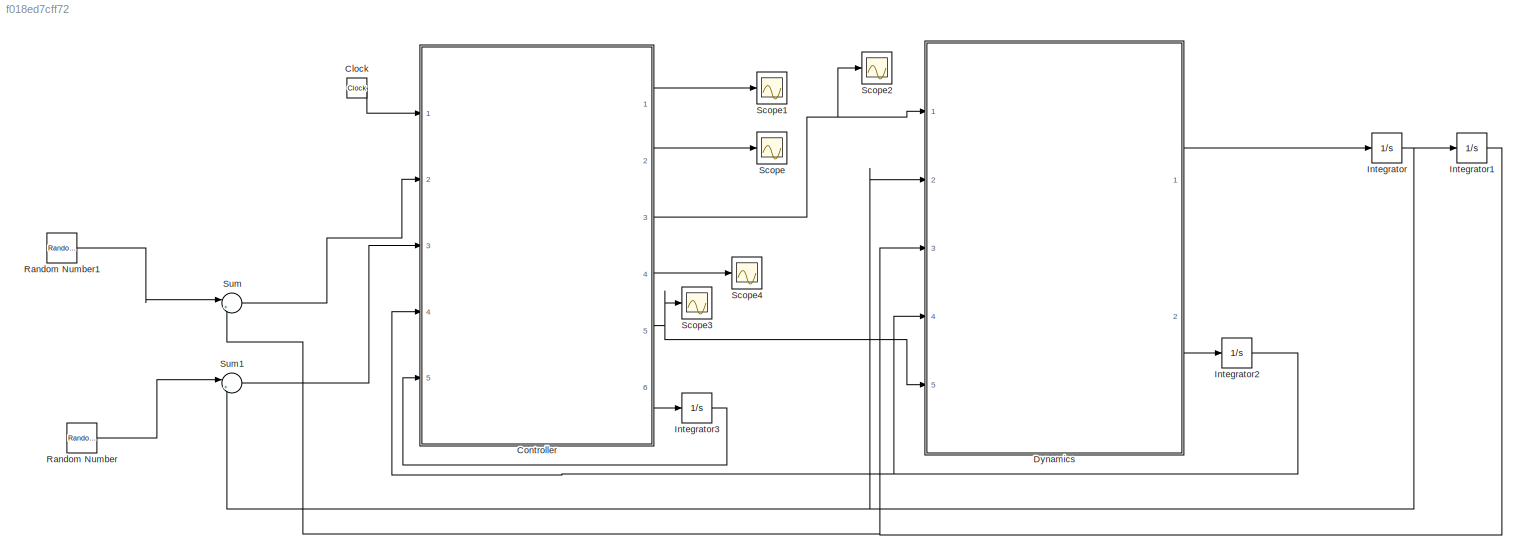
MODEL slx_f018ed7cff72
KIND model
CONFIG AbsTol = auto
CONFIG FixedStep = auto
CONFIG MaxStep = auto
CONFIG MinStep = auto
CONFIG RelTol = 1e-3
CONFIG SampleTimeConstraint = Unconstrained
CONFIG Solver = ode45
CONFIG SolverMode = Auto
CONFIG SolverName = ode45
CONFIG StartTime = 0.0
CONFIG StopTime = 50
BLOCK [Clock] Clock
  Decimation = 50
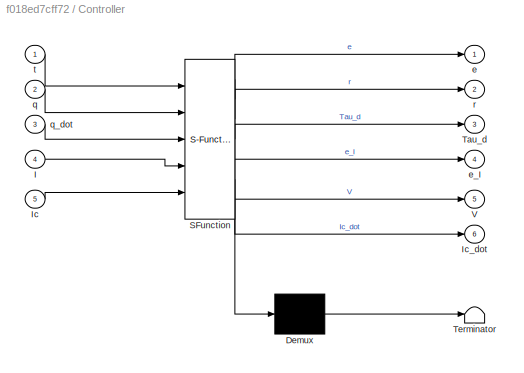
BLOCK [SubSystem] Controller
  ErrorFcn = Stateflow.Translate.translate
  PermitHierarchicalResolution = ExplicitOnly
  Ports = [5, 6]
  RequestExecContextInheritance = off
  SFBlockType = MATLAB Function
  TreatAsAtomicUnit = on
  Variant = off
BLOCK [Demux] Controller/ Demux 
  Outputs = 1
  Ports = [1, 1]
BLOCK [S-Function] Controller/ SFunction 
  EnableBusSupport = on
  FunctionName = sf_sfun
  PortCounts = [5 7]
  Ports = [5, 7]
  SFunctionDeploymentMode = off
  Tag = Stateflow S-Function Assignment_model3 1
BLOCK [Terminator] Controller/ Terminator 
BLOCK [Inport] Controller/I
  IconDisplay = Port number
  Port = 4
BLOCK [Inport] Controller/Ic
  IconDisplay = Port number
  Port = 5
BLOCK [Outport] Controller/Ic_dot
  IconDisplay = Port number
  Port = 6
BLOCK [Outport] Controller/Tau_d
  IconDisplay = Port number
  Port = 3
BLOCK [Outport] Controller/V
  IconDisplay = Port number
  Port = 5
BLOCK [Outport] Controller/e
  IconDisplay = Port number
BLOCK [Outport] Controller/e_I
  IconDisplay = Port number
  Port = 4
BLOCK [Inport] Controller/q
  IconDisplay = Port number
  Port = 2
BLOCK [Inport] Controller/q_dot
  IconDisplay = Port number
  Port = 3
BLOCK [Outport] Controller/r
  IconDisplay = Port number
  Port = 2
BLOCK [Inport] Controller/t
  IconDisplay = Port number
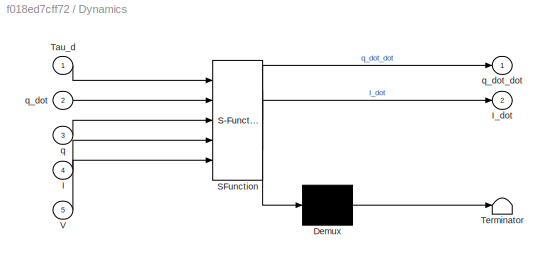
BLOCK [SubSystem] Dynamics
  ErrorFcn = Stateflow.Translate.translate
  PermitHierarchicalResolution = ExplicitOnly
  Ports = [5, 2]
  RequestExecContextInheritance = off
  SFBlockType = MATLAB Function
  TreatAsAtomicUnit = on
  Variant = off
BLOCK [Demux] Dynamics/ Demux 
  Outputs = 1
  Ports = [1, 1]
BLOCK [S-Function] Dynamics/ SFunction 
  EnableBusSupport = on
  FunctionName = sf_sfun
  PortCounts = [5 3]
  Ports = [5, 3]
  SFunctionDeploymentMode = off
  Tag = Stateflow S-Function Assignment_model3 2
BLOCK [Terminator] Dynamics/ Terminator 
BLOCK [Inport] Dynamics/I
  IconDisplay = Port number
  Port = 4
BLOCK [Outport] Dynamics/I_dot
  IconDisplay = Port number
  Port = 2
BLOCK [Inport] Dynamics/Tau_d
  IconDisplay = Port number
BLOCK [Inport] Dynamics/V
  IconDisplay = Port number
  Port = 5
BLOCK [Inport] Dynamics/q
  IconDisplay = Port number
  Port = 3
BLOCK [Inport] Dynamics/q_dot
  IconDisplay = Port number
  Port = 2
BLOCK [Outport] Dynamics/q_dot_dot
  IconDisplay = Port number
BLOCK [Integrator] Integrator
  InitialCondition = [1;-1]
  Ports = [1, 1]
BLOCK [Integrator] Integrator1
  InitialCondition = [1,9]
  Ports = [1, 1]
BLOCK [Integrator] Integrator2
  InitialCondition = [0;0]
  Ports = [1, 1]
BLOCK [Integrator] Integrator3
  InitialCondition = [0;0]
  Ports = [1, 1]
BLOCK [RandomNumber] Random Number
  SampleTime = 0.1
  Variance = 0
BLOCK [RandomNumber] Random Number1
  SampleTime = 0.1
  Variance = 0
BLOCK [Scope] Scope
  Ports = [1]
  ScopeSpecificationString = Simulink.scopes.TimeScopeBlockCfg('CurrentConfiguration', extmgr.ConfigurationSet(extmgr.Configuration('Core','General UI',true),extmgr.Configuration('Core','Source UI',true),extmgr.Configuration('Sources','WiredSimulink',true,'DataLoggingLimitDataPoints',true,'DataLoggingSaveFormat','Array','DataLoggingDecimation','1','DataLoggingDecimateData',true),extmgr.Configuration('Visuals','Time Domain',tr...<+1652ch>
BLOCK [Scope] Scope1
  Ports = [1]
  ScopeSpecificationString = Simulink.scopes.TimeScopeBlockCfg('CurrentConfiguration', extmgr.ConfigurationSet(extmgr.Configuration('Core','General UI',true),extmgr.Configuration('Core','Source UI',true),extmgr.Configuration('Sources','WiredSimulink',true,'DataLoggingVariableName','ScopeData1','DataLoggingLimitDataPoints',true,'DataLoggingSaveFormat','Array','DataLoggingDecimation','1','DataLoggingDecimateData',true),extmgr.C...<+1691ch>
BLOCK [Scope] Scope2
  Ports = [1]
  ScopeSpecificationString = Simulink.scopes.TimeScopeBlockCfg('CurrentConfiguration', extmgr.ConfigurationSet(extmgr.Configuration('Core','General UI',true),extmgr.Configuration('Core','Source UI',true),extmgr.Configuration('Sources','WiredSimulink',true,'DataLoggingVariableName','ScopeData2','DataLoggingLimitDataPoints',true,'DataLoggingSaveFormat','Array','DataLoggingDecimation','1','DataLoggingDecimateData',true),extmgr.C...<+1705ch>
BLOCK [Scope] Scope3
  Ports = [1]
  ScopeSpecificationString = Simulink.scopes.TimeScopeBlockCfg('CurrentConfiguration', extmgr.ConfigurationSet(extmgr.Configuration('Core','General UI',true),extmgr.Configuration('Core','Source UI',true),extmgr.Configuration('Sources','WiredSimulink',true,'DataLoggingVariableName','ScopeData1'),extmgr.Configuration('Visuals','Time Domain',true,'SerializedDisplays',{struct('MinYLimReal','-413.91816','MaxYLimReal','433.37083','...<+1500ch>
BLOCK [Scope] Scope4
  Ports = [1]
  ScopeSpecificationString = Simulink.scopes.TimeScopeBlockCfg('CurrentConfiguration', extmgr.ConfigurationSet(extmgr.Configuration('Core','General UI',true),extmgr.Configuration('Core','Source UI',true),extmgr.Configuration('Sources','WiredSimulink',true,'DataLoggingVariableName','ScopeData2'),extmgr.Configuration('Visuals','Time Domain',true,'SerializedDisplays',{struct('MinYLimReal','-14.49918','MaxYLimReal','2.5375','YLab...<+1423ch>
BLOCK [Sum] Sum
  IconShape = round
  InputSameDT = off
  Inputs = |++
  OutDataTypeStr = Inherit: Inherit via internal rule
  Ports = [2, 1]
  SaturateOnIntegerOverflow = off
BLOCK [Sum] Sum1
  IconShape = round
  InputSameDT = off
  Inputs = |++
  OutDataTypeStr = Inherit: Inherit via internal rule
  Ports = [2, 1]
  SaturateOnIntegerOverflow = off
LINE Clock:1 -> Controller:1
LINE Controller:1 -> Scope1:1
LINE Controller:2 -> Scope:1
NET Controller:3 -> Dynamics:1, Scope2:1
LINE Controller:4 -> Scope4:1
NET Controller:5 -> Dynamics:5, Scope3:1
LINE Controller:6 -> Integrator3:1
LINE Dynamics:1 -> Integrator:1
LINE Dynamics:2 -> Integrator2:1
NET Integrator1:1 -> Dynamics:3, Sum:2
NET Integrator2:1 -> Controller:4, Dynamics:4
LINE Integrator3:1 -> Controller:5
NET Integrator:1 -> Dynamics:2, Integrator1:1, Sum1:2
LINE Random Number1:1 -> Sum:1
LINE Random Number:1 -> Sum1:1
LINE Sum1:1 -> Controller:3
LINE Sum:1 -> Controller:2
note: NET lines group one-source signal fan-out (src -> all destinations, sorted); 1:1 wires keep LINE
CHART Controller states=1 transitions=1
  STATE_LABEL 'eML_blk_kernel()'
  STATE_LABEL 'SCRIPT:\nfunction [e,r,Tau_d,e_I,V,Ic_dot] = controller(t,q,q_dot,I,Ic) \n\nc2=cos(q(2));\ns2=sin(q(2));\nalpha=0.5;\nk=0.5;\n\np1=3.473;\np2=0.196;\np3=0.242;\nfd1=5.3;\nfd2=1.1;\n\nqd=[5*sin(t);10*cos(t)];\nqd_dot=[5*cos(t);-10*sin(t)];\nqd_ddot=[-5*sin(t);-10*cos(t)];\ne=q-qd;     %Tracking Error\ne_dot=q_dot-qd_dot;\n\nr=e_dot+alpha*e;         %Filtered Tracking Error\n\n%-------------------------------------------...<+1143ch>'
CHART Dynamics states=1 transitions=1
  STATE_LABEL 'eML_blk_kernel()'
  STATE_LABEL 'SCRIPT:\nfunction [q_dot_dot,I_dot]  = dynamics(Tau_d,q_dot,q, I, V)\n%#codegen\np1=3.473;\np2=0.196;\np3=0.242;\nfd1=5.3;\nfd2=1.1;\n\nc2=cos(q(2));\ns2=sin(q(2));\n% alpha=1;\n\nM=[p1+2*p3*c2 p2+p3*c2;p2+p3*c2 p2];% Inertia matrix\nVm=[-p3*s2*q_dot(2) -p3*s2*(q_dot(1)+q_dot(2));p3*s2*q_dot(1) 0];%Centripetal coriolis matrix\nfd=[fd1 0;0 fd2]; % Friction matrix\nq_dot_dot=-M\\(Vm*q_dot+fd*q_dot-Tau_d);   %EL dyna...<+53ch>'
